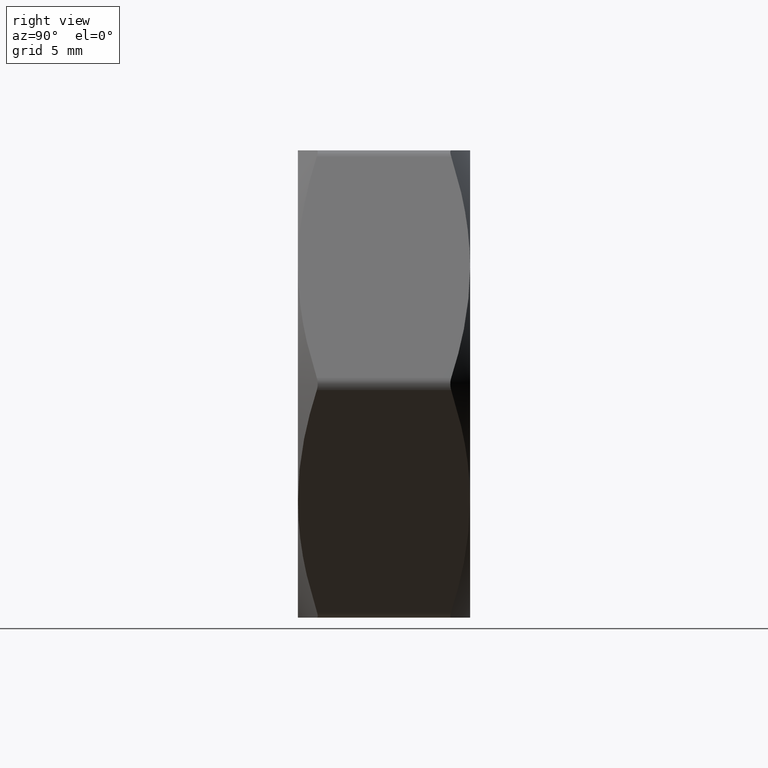
[diagram: clean part render]
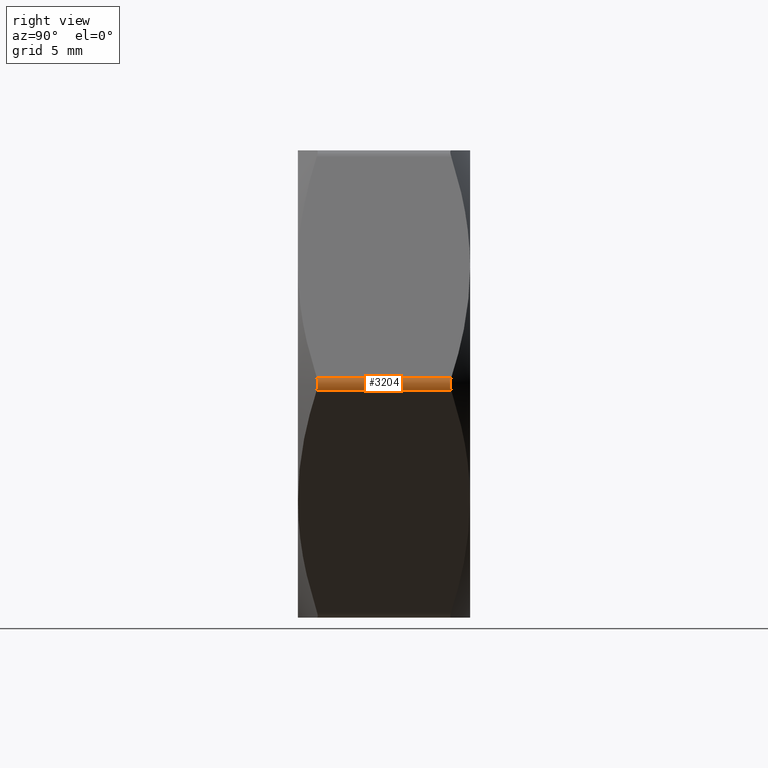
[diagram: same view with one face highlighted and labeled with its STEP entity id]
A machine part, right view. The second image highlights one B-rep face of the part: STEP entity #3204.
In plain terms, the highlighted cylindrical surface (edge-blend (fillet) strip) has radius 0.5 mm, axis along (0, -1, 0).
Its self-contained STEP definition (entity closure, byte-faithful):
#180 = VERTEX_POINT ( 'NONE', #13885 ) ;
#309 = FACE_OUTER_BOUND ( 'NONE', #4559, .T. ) ;
#317 = CARTESIAN_POINT ( 'NONE',  ( 10.82531754730547700, 3.500000000000000000, -0.2500000000000003300 ) ) ;
#356 = ORIENTED_EDGE ( 'NONE', *, *, #4764, .F. ) ;
#454 = EDGE_CURVE ( 'NONE', #180, #14901, #10689, .T. ) ;
#541 = DIRECTION ( 'NONE',  ( 0.0000000000000000000, 0.0000000000000000000, -1.000000000000000000 ) ) ;
#1295 = VECTOR ( 'NONE', #11214, 1000.000000000000000 ) ;
#1358 = CARTESIAN_POINT ( 'NONE',  ( 10.89238375193495000, 2.696108957237656000, -0.08764487288724152900 ) ) ;
#1707 = CYLINDRICAL_SURFACE ( 'NONE', #11750, 0.5000000000000000000 ) ;
#2355 = CARTESIAN_POINT ( 'NONE',  ( 10.82531754730597700, -2.733161112797499700, -0.2499999999991389900 ) ) ;
#2409 = CARTESIAN_POINT ( 'NONE',  ( 10.89238375193495000, -2.696108957237656000, 0.08764487288724139000 ) ) ;
#3106 = CARTESIAN_POINT ( 'NONE',  ( 10.39230484541325900, 3.500000000000000000, -1.626303258728256700E-016 ) ) ;
#3204 = ADVANCED_FACE ( 'NONE', ( #309 ), #1707, .T. ) ;
#3881 = CARTESIAN_POINT ( 'NONE',  ( 10.89222553569159900, -2.696196110277377900, -0.08854287053725090600 ) ) ;
#4559 = EDGE_LOOP ( 'NONE', ( #356, #15147, #10365, #15559 ) ) ;
#4764 = EDGE_CURVE ( 'NONE', #13647, #180, #10246, .T. ) ;
#4981 = CARTESIAN_POINT ( 'NONE',  ( 10.82531754730547700, -2.733161112797775500, 0.2499999999999995800 ) ) ;
#5245 = CARTESIAN_POINT ( 'NONE',  ( 10.82531754730547700, 2.733161112797775500, -0.2499999999999995800 ) ) ;
#5386 = VERTEX_POINT ( 'NONE', #4981 ) ;
#7481 = CARTESIAN_POINT ( 'NONE',  ( 10.86826663802246500, -2.709362655883584400, 0.1756099927392921500 ) ) ;
#7935 = CARTESIAN_POINT ( 'NONE',  ( 10.89222553569159900, 2.696196110277377900, 0.08854287053725087800 ) ) ;
#7944 = LINE ( 'NONE', #9808, #1295 ) ;
#8088 = DIRECTION ( 'NONE',  ( 0.0000000000000000000, -1.000000000000000000, 0.0000000000000000000 ) ) ;
#8194 = EDGE_CURVE ( 'NONE', #14901, #5386, #8587, .T. ) ;
#8587 = B_SPLINE_CURVE_WITH_KNOTS ( 'NONE', 3,
 ( #2355, #16563, #3881, #2409, #7481, #15275 ),
 .UNSPECIFIED., .F., .F.,
 ( 4, 2, 4 ),
 ( 9.643623209513129400E-016, 0.0002637781458279587500, 0.0005275562916549532200 ),
 .UNSPECIFIED. ) ;
#9080 = CARTESIAN_POINT ( 'NONE',  ( 10.82531754730597500, 2.733161112797500200, 0.2499999999991383800 ) ) ;
#9695 = VECTOR ( 'NONE', #15921, 1000.000000000000000 ) ;
#9808 = CARTESIAN_POINT ( 'NONE',  ( 10.82531754730547700, 3.500000000000000000, 0.2499999999999985000 ) ) ;
#10246 = B_SPLINE_CURVE_WITH_KNOTS ( 'NONE', 3,
 ( #9080, #15721, #7935, #1358, #11649, #5245 ),
 .UNSPECIFIED., .F., .F.,
 ( 4, 2, 4 ),
 ( 9.639170801074422900E-016, 0.0002637781458279583700, 0.0005275562916549528900 ),
 .UNSPECIFIED. ) ;
#10365 = ORIENTED_EDGE ( 'NONE', *, *, #8194, .F. ) ;
#10689 = LINE ( 'NONE', #317, #9695 ) ;
#11214 = DIRECTION ( 'NONE',  ( -0.0000000000000000000, 1.000000000000000000, -0.0000000000000000000 ) ) ;
#11649 = CARTESIAN_POINT ( 'NONE',  ( 10.86826663802246500, 2.709362655883584400, -0.1756099927392926200 ) ) ;
#11750 = AXIS2_PLACEMENT_3D ( 'NONE', #3106, #8088, #541 ) ;
#12008 = EDGE_CURVE ( 'NONE', #5386, #13647, #7944, .T. ) ;
#12409 = CARTESIAN_POINT ( 'NONE',  ( 10.82531754730597700, -2.733161112797499700, -0.2499999999991389900 ) ) ;
#13401 = CARTESIAN_POINT ( 'NONE',  ( 10.82531754730597500, 2.733161112797500200, 0.2499999999991383800 ) ) ;
#13647 = VERTEX_POINT ( 'NONE', #13401 ) ;
#13885 = CARTESIAN_POINT ( 'NONE',  ( 10.82531754730547700, 2.733161112797775500, -0.2499999999999995800 ) ) ;
#14901 = VERTEX_POINT ( 'NONE', #12409 ) ;
#15147 = ORIENTED_EDGE ( 'NONE', *, *, #12008, .F. ) ;
#15275 = CARTESIAN_POINT ( 'NONE',  ( 10.82531754730547700, -2.733161112797775500, 0.2499999999999995800 ) ) ;
#15559 = ORIENTED_EDGE ( 'NONE', *, *, #454, .F. ) ;
#15721 = CARTESIAN_POINT ( 'NONE',  ( 10.86825100933161700, 2.709371315873999400, 0.1756370624258956300 ) ) ;
#15921 = DIRECTION ( 'NONE',  ( 0.0000000000000000000, -1.000000000000000000, 0.0000000000000000000 ) ) ;
#16563 = CARTESIAN_POINT ( 'NONE',  ( 10.86825100933161700, -2.709371315873999400, -0.1756370624258961600 ) ) ;